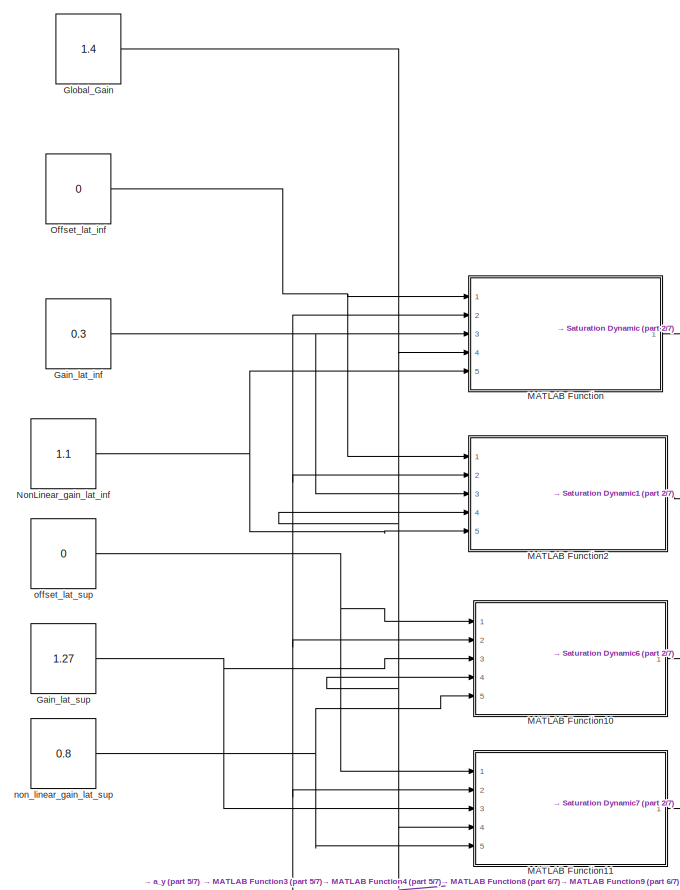
[diagram: root canvas - part 1/7, top center region]
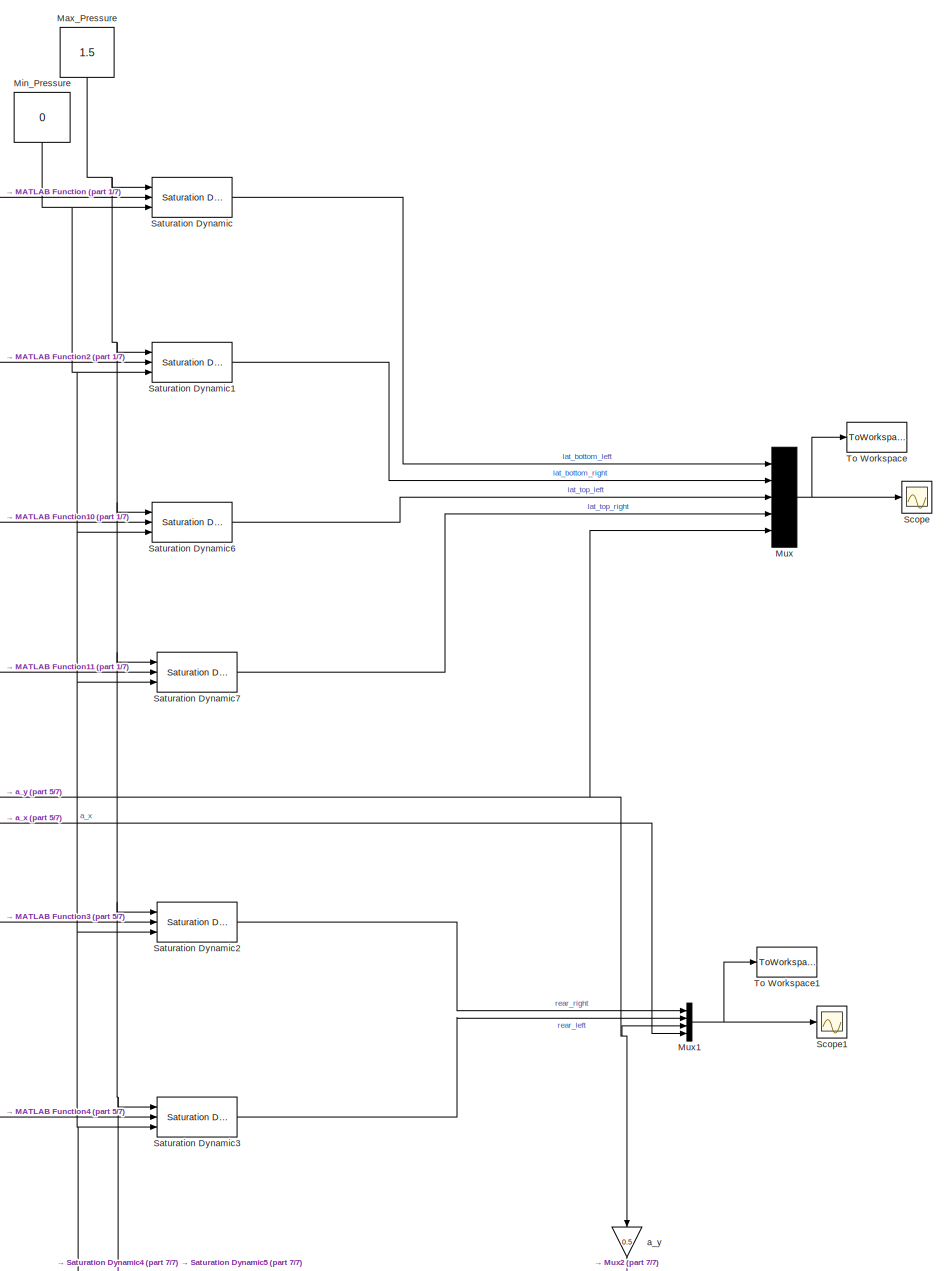
[diagram: root canvas - part 2/7, top right region]
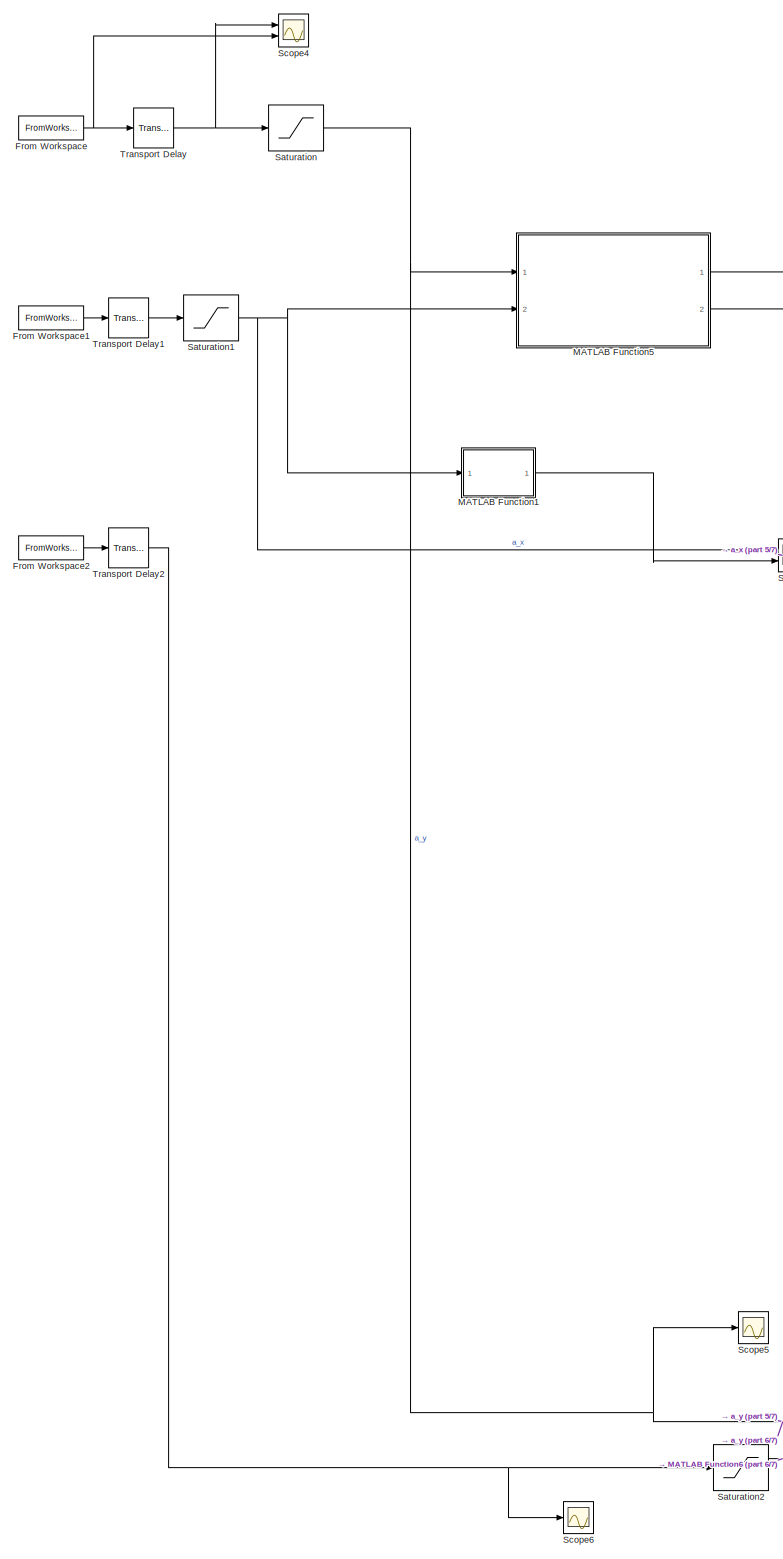
[diagram: root canvas - part 3/7, middle left region]
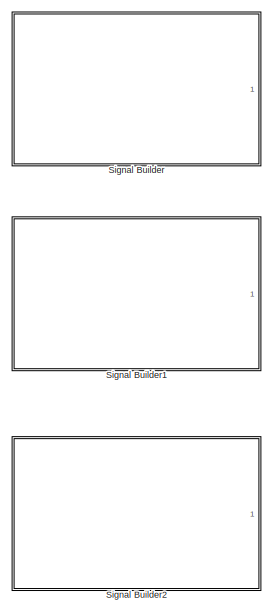
[diagram: root canvas - part 4/7, middle left region]
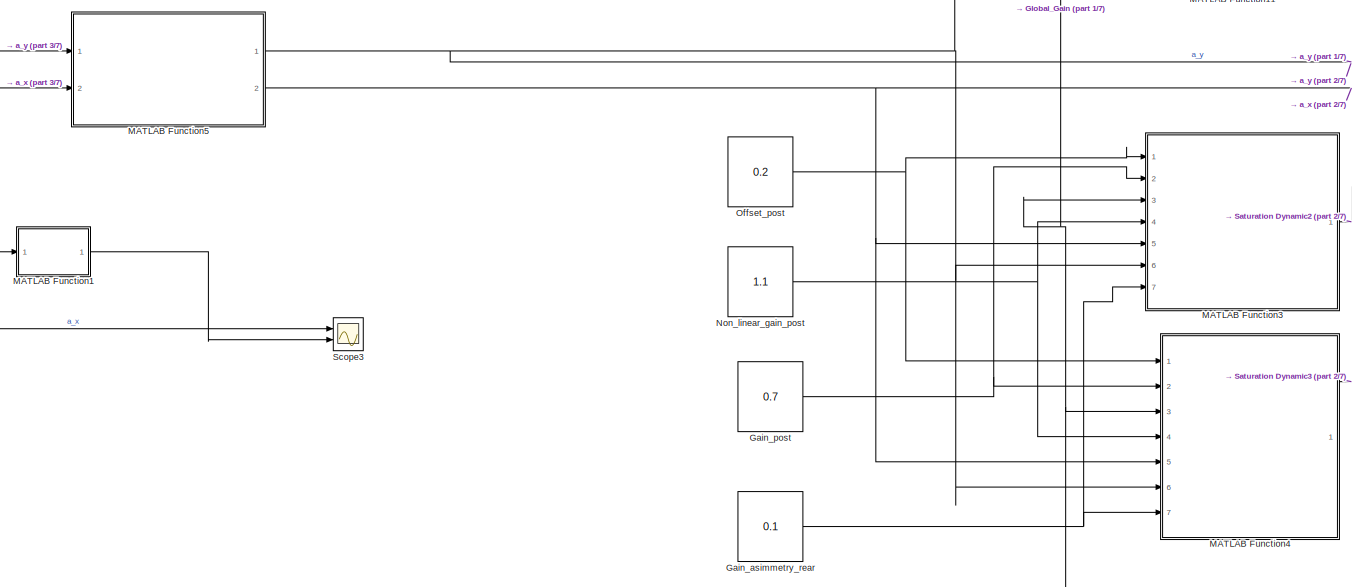
[diagram: root canvas - part 5/7, central region]
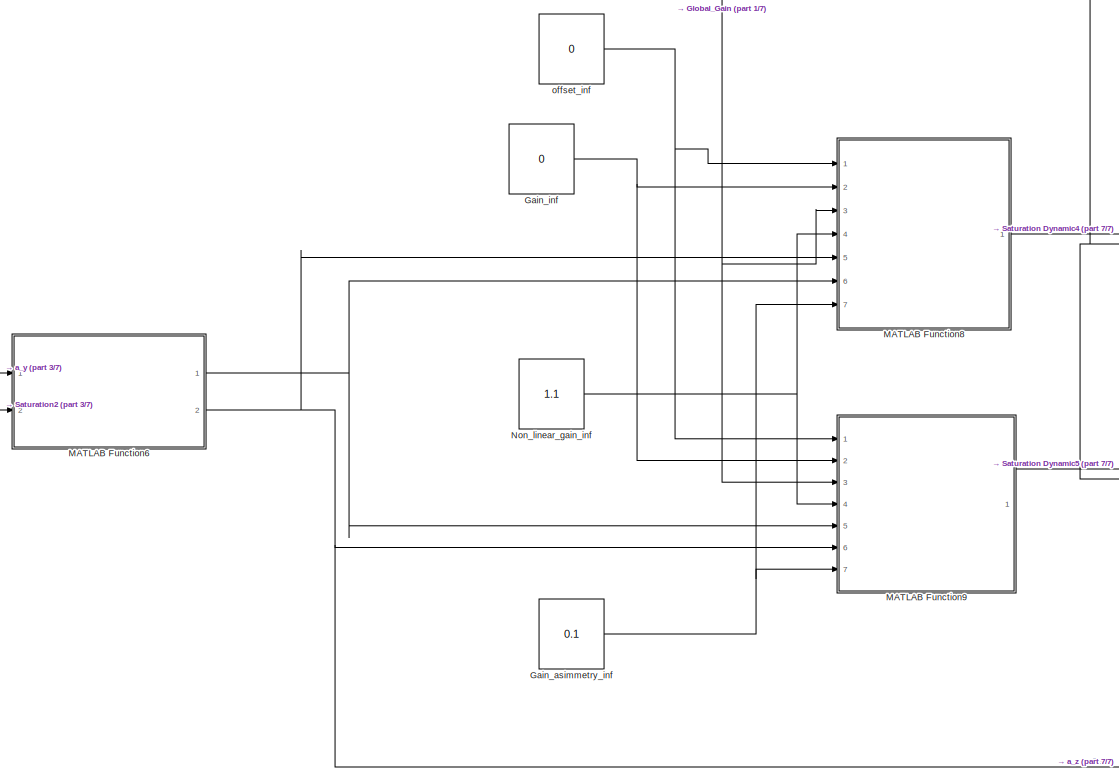
[diagram: root canvas - part 6/7, bottom center region]
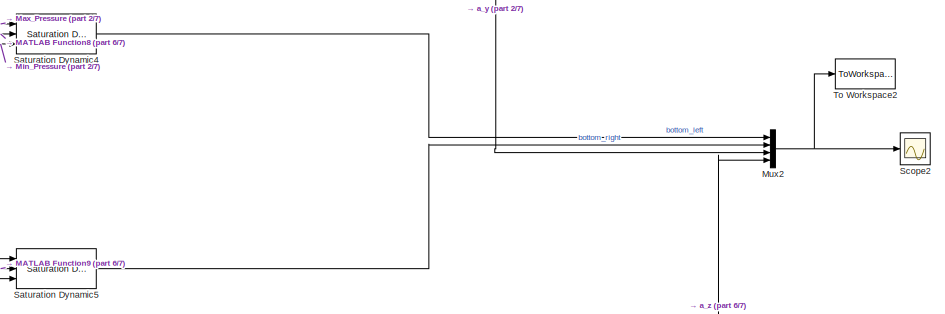
[diagram: root canvas - part 7/7, bottom right region]
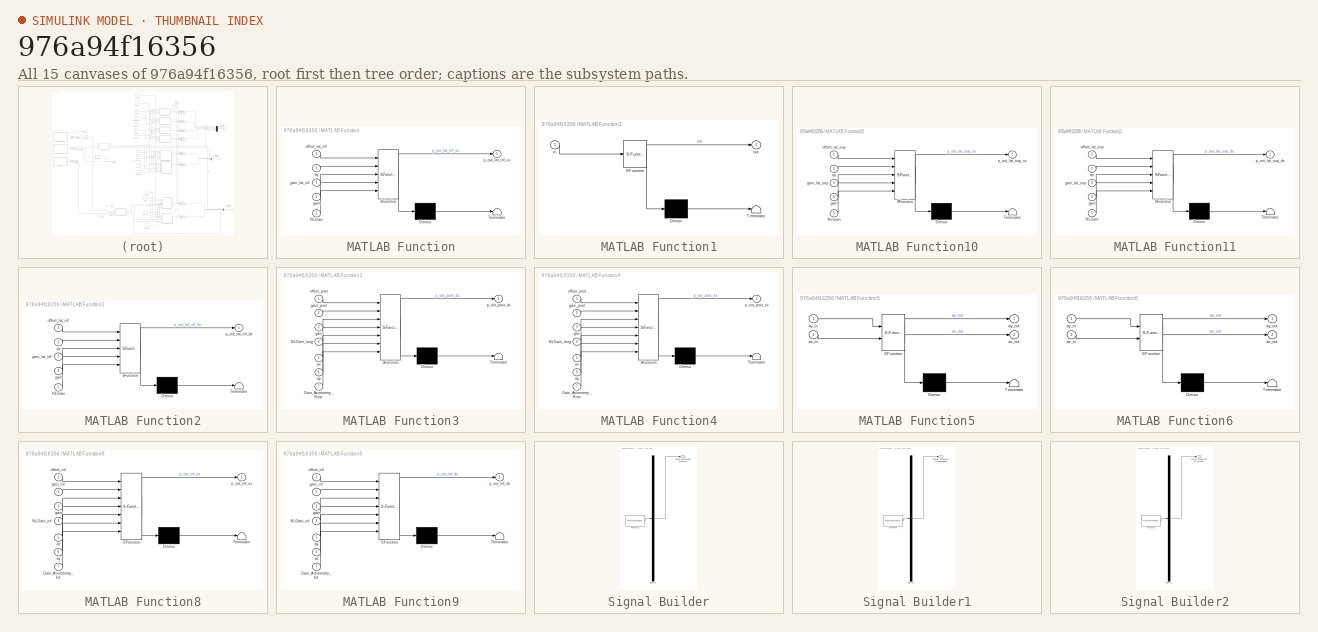
[diagram: thumbnail index - all 15 canvases of the model, root first then tree order]
MODEL slx_976a94f16356
KIND model
CONFIG AbsTol = auto
CONFIG EnableMultiTasking = on
CONFIG FixedStep = 0.001
CONFIG MaxStep = auto
CONFIG MinStep = auto
CONFIG RelTol = 1e-3
CONFIG SampleTimeConstraint = Unconstrained
CONFIG Solver = ode4
CONFIG SolverName = ode4
CONFIG StartTime = 0.0
CONFIG StopTime = 25
BLOCK [FromWorkspace] From Workspace
  SampleTime = 0
  VariableName = lateral_control_signal
  ZeroCross = on
BLOCK [FromWorkspace] From Workspace1
  SampleTime = 0
  VariableName = longitudinal_control_signal
  ZeroCross = on
BLOCK [FromWorkspace] From Workspace2
  SampleTime = 0
  VariableName = vertical_control_signal
  ZeroCross = on
BLOCK [Constant] Gain_asimmetry_inf
  Value = 0.1
BLOCK [Constant] Gain_asimmetry_rear
  Value = 0.1
BLOCK [Constant] Gain_inf
  Value = 0
BLOCK [Constant] Gain_lat_inf
  Value = 0.3
BLOCK [Constant] Gain_lat_sup
  Value = 1.27
BLOCK [Constant] Gain_post
  Value = 0.7
BLOCK [Constant] Global_Gain
  Value = 1.4
BLOCK [SubSystem] MATLAB Function
  ErrorFcn = Stateflow.Translate.translate
  PermitHierarchicalResolution = ExplicitOnly
  Ports = [5, 1]
  RequestExecContextInheritance = off
  SFBlockType = MATLAB Function
  TreatAsAtomicUnit = on
  Variant = off
BLOCK [Demux] MATLAB Function/ Demux 
  Outputs = 1
  Ports = [1, 1]
BLOCK [S-Function] MATLAB Function/ SFunction 
  EnableBusSupport = on
  FunctionName = sf_sfun
  PortCounts = [5 2]
  Ports = [5, 2]
  SFcnIsStateOwnerBlock = off
  SFunctionDeploymentMode = off
  Tag = Stateflow S-Function Active_seat_04_OFFLINE 2
BLOCK [Terminator] MATLAB Function/ Terminator 
BLOCK [Inport] MATLAB Function/NLGain
  IconDisplay = Port number
  Port = 5
BLOCK [Inport] MATLAB Function/ay
  IconDisplay = Port number
  Port = 2
BLOCK [Inport] MATLAB Function/gain
  IconDisplay = Port number
  Port = 4
BLOCK [Inport] MATLAB Function/gain_lat_inf
  IconDisplay = Port number
  Port = 3
BLOCK [Inport] MATLAB Function/offset_lat_inf
  IconDisplay = Port number
BLOCK [Outport] MATLAB Function/p_out_lat_inf_sx
  IconDisplay = Port number
BLOCK [SubSystem] MATLAB Function1
  ErrorFcn = Stateflow.Translate.translate
  PermitHierarchicalResolution = ExplicitOnly
  Ports = [1, 1]
  RequestExecContextInheritance = off
  SFBlockType = MATLAB Function
  TreatAsAtomicUnit = on
  Variant = off
BLOCK [Demux] MATLAB Function1/ Demux 
  Outputs = 1
  Ports = [1, 1]
BLOCK [S-Function] MATLAB Function1/ SFunction 
  EnableBusSupport = on
  FunctionName = sf_sfun
  PortCounts = [1 2]
  Ports = [1, 2]
  SFcnIsStateOwnerBlock = off
  SFunctionDeploymentMode = off
  Tag = Stateflow S-Function Active_seat_04_OFFLINE 1
BLOCK [Terminator] MATLAB Function1/ Terminator 
BLOCK [Inport] MATLAB Function1/in
  IconDisplay = Port number
BLOCK [Outport] MATLAB Function1/out
  IconDisplay = Port number
BLOCK [SubSystem] MATLAB Function10
  ErrorFcn = Stateflow.Translate.translate
  PermitHierarchicalResolution = ExplicitOnly
  Ports = [5, 1]
  RequestExecContextInheritance = off
  SFBlockType = MATLAB Function
  TreatAsAtomicUnit = on
  Variant = off
BLOCK [Demux] MATLAB Function10/ Demux 
  Outputs = 1
  Ports = [1, 1]
BLOCK [S-Function] MATLAB Function10/ SFunction 
  EnableBusSupport = on
  FunctionName = sf_sfun
  PortCounts = [5 2]
  Ports = [5, 2]
  SFcnIsStateOwnerBlock = off
  SFunctionDeploymentMode = off
  Tag = Stateflow S-Function Active_seat_04_OFFLINE 11
BLOCK [Terminator] MATLAB Function10/ Terminator 
BLOCK [Inport] MATLAB Function10/NLGain
  IconDisplay = Port number
  Port = 5
BLOCK [Inport] MATLAB Function10/ay
  IconDisplay = Port number
  Port = 2
BLOCK [Inport] MATLAB Function10/gain
  IconDisplay = Port number
  Port = 4
BLOCK [Inport] MATLAB Function10/gain_lat_sup
  IconDisplay = Port number
  Port = 3
BLOCK [Inport] MATLAB Function10/offset_lat_sup
  IconDisplay = Port number
BLOCK [Outport] MATLAB Function10/p_out_lat_sup_sx
  IconDisplay = Port number
BLOCK [SubSystem] MATLAB Function11
  ErrorFcn = Stateflow.Translate.translate
  PermitHierarchicalResolution = ExplicitOnly
  Ports = [5, 1]
  RequestExecContextInheritance = off
  SFBlockType = MATLAB Function
  TreatAsAtomicUnit = on
  Variant = off
BLOCK [Demux] MATLAB Function11/ Demux 
  Outputs = 1
  Ports = [1, 1]
BLOCK [S-Function] MATLAB Function11/ SFunction 
  EnableBusSupport = on
  FunctionName = sf_sfun
  PortCounts = [5 2]
  Ports = [5, 2]
  SFcnIsStateOwnerBlock = off
  SFunctionDeploymentMode = off
  Tag = Stateflow S-Function Active_seat_04_OFFLINE 12
BLOCK [Terminator] MATLAB Function11/ Terminator 
BLOCK [Inport] MATLAB Function11/NLGain
  IconDisplay = Port number
  Port = 5
BLOCK [Inport] MATLAB Function11/ay
  IconDisplay = Port number
  Port = 2
BLOCK [Inport] MATLAB Function11/gain
  IconDisplay = Port number
  Port = 4
BLOCK [Inport] MATLAB Function11/gain_lat_sup
  IconDisplay = Port number
  Port = 3
BLOCK [Inport] MATLAB Function11/offset_lat_sup
  IconDisplay = Port number
BLOCK [Outport] MATLAB Function11/p_out_lat_sup_dx
  IconDisplay = Port number
BLOCK [SubSystem] MATLAB Function2
  ErrorFcn = Stateflow.Translate.translate
  PermitHierarchicalResolution = ExplicitOnly
  Ports = [5, 1]
  RequestExecContextInheritance = off
  SFBlockType = MATLAB Function
  TreatAsAtomicUnit = on
  Variant = off
BLOCK [Demux] MATLAB Function2/ Demux 
  Outputs = 1
  Ports = [1, 1]
BLOCK [S-Function] MATLAB Function2/ SFunction 
  EnableBusSupport = on
  FunctionName = sf_sfun
  PortCounts = [5 2]
  Ports = [5, 2]
  SFcnIsStateOwnerBlock = off
  SFunctionDeploymentMode = off
  Tag = Stateflow S-Function Active_seat_04_OFFLINE 3
BLOCK [Terminator] MATLAB Function2/ Terminator 
BLOCK [Inport] MATLAB Function2/NLGain
  IconDisplay = Port number
  Port = 5
BLOCK [Inport] MATLAB Function2/ay
  IconDisplay = Port number
  Port = 2
BLOCK [Inport] MATLAB Function2/gain
  IconDisplay = Port number
  Port = 4
BLOCK [Inport] MATLAB Function2/gain_lat_inf
  IconDisplay = Port number
  Port = 3
BLOCK [Inport] MATLAB Function2/offset_lat_inf
  IconDisplay = Port number
BLOCK [Outport] MATLAB Function2/p_out_lat_inf_dx
  IconDisplay = Port number
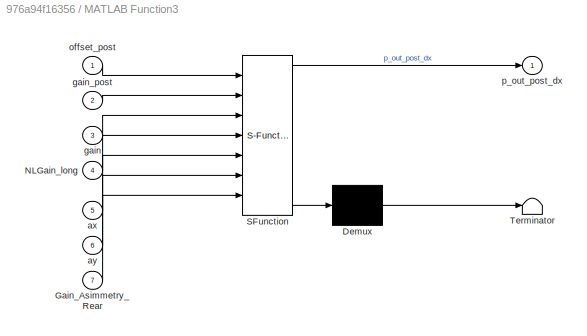
BLOCK [SubSystem] MATLAB Function3
  ErrorFcn = Stateflow.Translate.translate
  PermitHierarchicalResolution = ExplicitOnly
  Ports = [7, 1]
  RequestExecContextInheritance = off
  SFBlockType = MATLAB Function
  TreatAsAtomicUnit = on
  Variant = off
BLOCK [Demux] MATLAB Function3/ Demux 
  Outputs = 1
  Ports = [1, 1]
BLOCK [S-Function] MATLAB Function3/ SFunction 
  EnableBusSupport = on
  FunctionName = sf_sfun
  PortCounts = [7 2]
  Ports = [7, 2]
  SFcnIsStateOwnerBlock = off
  SFunctionDeploymentMode = off
  Tag = Stateflow S-Function Active_seat_04_OFFLINE 4
BLOCK [Terminator] MATLAB Function3/ Terminator 
BLOCK [Inport] MATLAB Function3/Gain_Asimmetry_Rear
  IconDisplay = Port number
  Port = 7
BLOCK [Inport] MATLAB Function3/NLGain_long
  IconDisplay = Port number
  Port = 4
BLOCK [Inport] MATLAB Function3/ax
  IconDisplay = Port number
  Port = 5
BLOCK [Inport] MATLAB Function3/ay
  IconDisplay = Port number
  Port = 6
BLOCK [Inport] MATLAB Function3/gain
  IconDisplay = Port number
  Port = 3
BLOCK [Inport] MATLAB Function3/gain_post
  IconDisplay = Port number
  Port = 2
BLOCK [Inport] MATLAB Function3/offset_post
  IconDisplay = Port number
BLOCK [Outport] MATLAB Function3/p_out_post_dx
  IconDisplay = Port number
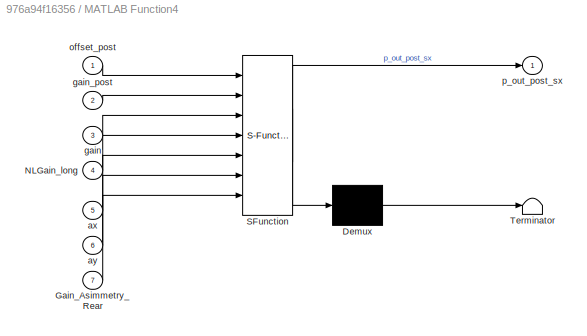
BLOCK [SubSystem] MATLAB Function4
  ErrorFcn = Stateflow.Translate.translate
  PermitHierarchicalResolution = ExplicitOnly
  Ports = [7, 1]
  RequestExecContextInheritance = off
  SFBlockType = MATLAB Function
  TreatAsAtomicUnit = on
  Variant = off
BLOCK [Demux] MATLAB Function4/ Demux 
  Outputs = 1
  Ports = [1, 1]
BLOCK [S-Function] MATLAB Function4/ SFunction 
  EnableBusSupport = on
  FunctionName = sf_sfun
  PortCounts = [7 2]
  Ports = [7, 2]
  SFcnIsStateOwnerBlock = off
  SFunctionDeploymentMode = off
  Tag = Stateflow S-Function Active_seat_04_OFFLINE 5
BLOCK [Terminator] MATLAB Function4/ Terminator 
BLOCK [Inport] MATLAB Function4/Gain_Asimmetry_Rear
  IconDisplay = Port number
  Port = 7
BLOCK [Inport] MATLAB Function4/NLGain_long
  IconDisplay = Port number
  Port = 4
BLOCK [Inport] MATLAB Function4/ax
  IconDisplay = Port number
  Port = 5
BLOCK [Inport] MATLAB Function4/ay
  IconDisplay = Port number
  Port = 6
BLOCK [Inport] MATLAB Function4/gain
  IconDisplay = Port number
  Port = 3
BLOCK [Inport] MATLAB Function4/gain_post
  IconDisplay = Port number
  Port = 2
BLOCK [Inport] MATLAB Function4/offset_post
  IconDisplay = Port number
BLOCK [Outport] MATLAB Function4/p_out_post_sx
  IconDisplay = Port number
BLOCK [SubSystem] MATLAB Function5
  ErrorFcn = Stateflow.Translate.translate
  PermitHierarchicalResolution = ExplicitOnly
  Ports = [2, 2]
  RequestExecContextInheritance = off
  SFBlockType = MATLAB Function
  TreatAsAtomicUnit = on
  Variant = off
BLOCK [Demux] MATLAB Function5/ Demux 
  Outputs = 1
  Ports = [1, 1]
BLOCK [S-Function] MATLAB Function5/ SFunction 
  EnableBusSupport = on
  FunctionName = sf_sfun
  Parameters = filter_pars
  PortCounts = [2 3]
  Ports = [2, 3]
  SFcnIsStateOwnerBlock = off
  SFunctionDeploymentMode = off
  Tag = Stateflow S-Function Active_seat_04_OFFLINE 6
BLOCK [Terminator] MATLAB Function5/ Terminator 
BLOCK [Inport] MATLAB Function5/ax_in
  IconDisplay = Port number
  Port = 2
BLOCK [Outport] MATLAB Function5/ax_out
  IconDisplay = Port number
  Port = 2
BLOCK [Inport] MATLAB Function5/ay_in
  IconDisplay = Port number
BLOCK [Outport] MATLAB Function5/ay_out
  IconDisplay = Port number
BLOCK [SubSystem] MATLAB Function6
  ErrorFcn = Stateflow.Translate.translate
  PermitHierarchicalResolution = ExplicitOnly
  Ports = [2, 2]
  RequestExecContextInheritance = off
  SFBlockType = MATLAB Function
  TreatAsAtomicUnit = on
  Variant = off
BLOCK [Demux] MATLAB Function6/ Demux 
  Outputs = 1
  Ports = [1, 1]
BLOCK [S-Function] MATLAB Function6/ SFunction 
  EnableBusSupport = on
  FunctionName = sf_sfun
  Parameters = filter_pars
  PortCounts = [2 3]
  Ports = [2, 3]
  SFcnIsStateOwnerBlock = off
  SFunctionDeploymentMode = off
  Tag = Stateflow S-Function Active_seat_04_OFFLINE 7
BLOCK [Terminator] MATLAB Function6/ Terminator 
BLOCK [Inport] MATLAB Function6/ay_in
  IconDisplay = Port number
BLOCK [Outport] MATLAB Function6/ay_out
  IconDisplay = Port number
BLOCK [Inport] MATLAB Function6/az_in
  IconDisplay = Port number
  Port = 2
BLOCK [Outport] MATLAB Function6/az_out
  IconDisplay = Port number
  Port = 2
BLOCK [SubSystem] MATLAB Function8
  ErrorFcn = Stateflow.Translate.translate
  PermitHierarchicalResolution = ExplicitOnly
  Ports = [7, 1]
  RequestExecContextInheritance = off
  SFBlockType = MATLAB Function
  TreatAsAtomicUnit = on
  Variant = off
BLOCK [Demux] MATLAB Function8/ Demux 
  Outputs = 1
  Ports = [1, 1]
BLOCK [S-Function] MATLAB Function8/ SFunction 
  EnableBusSupport = on
  FunctionName = sf_sfun
  PortCounts = [7 2]
  Ports = [7, 2]
  SFcnIsStateOwnerBlock = off
  SFunctionDeploymentMode = off
  Tag = Stateflow S-Function Active_seat_04_OFFLINE 9
BLOCK [Terminator] MATLAB Function8/ Terminator 
BLOCK [Inport] MATLAB Function8/Gain_Asimmetry_Inf
  IconDisplay = Port number
  Port = 7
BLOCK [Inport] MATLAB Function8/NLGain_inf
  IconDisplay = Port number
  Port = 4
BLOCK [Inport] MATLAB Function8/ay
  IconDisplay = Port number
  Port = 6
BLOCK [Inport] MATLAB Function8/az
  IconDisplay = Port number
  Port = 5
BLOCK [Inport] MATLAB Function8/gain
  IconDisplay = Port number
  Port = 3
BLOCK [Inport] MATLAB Function8/gain_inf
  IconDisplay = Port number
  Port = 2
BLOCK [Inport] MATLAB Function8/offset_inf
  IconDisplay = Port number
BLOCK [Outport] MATLAB Function8/p_out_inf_sx
  IconDisplay = Port number
BLOCK [SubSystem] MATLAB Function9
  ErrorFcn = Stateflow.Translate.translate
  PermitHierarchicalResolution = ExplicitOnly
  Ports = [7, 1]
  RequestExecContextInheritance = off
  SFBlockType = MATLAB Function
  TreatAsAtomicUnit = on
  Variant = off
BLOCK [Demux] MATLAB Function9/ Demux 
  Outputs = 1
  Ports = [1, 1]
BLOCK [S-Function] MATLAB Function9/ SFunction 
  EnableBusSupport = on
  FunctionName = sf_sfun
  PortCounts = [7 2]
  Ports = [7, 2]
  SFcnIsStateOwnerBlock = off
  SFunctionDeploymentMode = off
  Tag = Stateflow S-Function Active_seat_04_OFFLINE 10
BLOCK [Terminator] MATLAB Function9/ Terminator 
BLOCK [Inport] MATLAB Function9/Gain_Asimmetry_Inf
  IconDisplay = Port number
  Port = 7
BLOCK [Inport] MATLAB Function9/NLGain_inf
  IconDisplay = Port number
  Port = 4
BLOCK [Inport] MATLAB Function9/ay
  IconDisplay = Port number
  Port = 5
BLOCK [Inport] MATLAB Function9/az
  IconDisplay = Port number
  Port = 6
BLOCK [Inport] MATLAB Function9/gain
  IconDisplay = Port number
  Port = 3
BLOCK [Inport] MATLAB Function9/gain_inf
  IconDisplay = Port number
  Port = 2
BLOCK [Inport] MATLAB Function9/offset_inf
  IconDisplay = Port number
BLOCK [Outport] MATLAB Function9/p_out_inf_dx
  IconDisplay = Port number
BLOCK [Constant] Max_Pressure
  Value = 1.5
BLOCK [Constant] Min_Pressure
  Value = 0
BLOCK [Mux] Mux
  DisplayOption = bar
  Inputs = 5
  Ports = [5, 1]
BLOCK [Mux] Mux1
  DisplayOption = bar
  Ports = [4, 1]
BLOCK [Mux] Mux2
  DisplayOption = bar
  Ports = [4, 1]
BLOCK [Constant] NonLinear_gain_lat_inf
  Value = 1.1
BLOCK [Constant] Non_linear_gain_inf
  Value = 1.1
BLOCK [Constant] Non_linear_gain_post
  Value = 1.1
BLOCK [Constant] Offset_lat_inf
  Value = 0
BLOCK [Constant] Offset_post
  Value = 0.2
BLOCK [Saturate] Saturation
  InputPortMap = u0
  LowerLimit = -5
  Ports = [1, 1]
  UpperLimit = 5
BLOCK [Reference] Saturation Dynamic  REF=simulink/Discontinuities/Saturation
Dynamic
  Ports = [3, 1]
  SourceBlock = simulink/Discontinuities/Saturation\nDynamic
  SourceProductBaseCode = SL
  SourceProductName = Simulink
  SourceType = Saturation Dynamic
BLOCK [Reference] Saturation Dynamic1  REF=simulink/Discontinuities/Saturation
Dynamic
  Ports = [3, 1]
  SourceBlock = simulink/Discontinuities/Saturation\nDynamic
  SourceProductBaseCode = SL
  SourceProductName = Simulink
  SourceType = Saturation Dynamic
BLOCK [Reference] Saturation Dynamic2  REF=simulink/Discontinuities/Saturation
Dynamic
  Ports = [3, 1]
  SourceBlock = simulink/Discontinuities/Saturation\nDynamic
  SourceProductBaseCode = SL
  SourceProductName = Simulink
  SourceType = Saturation Dynamic
BLOCK [Reference] Saturation Dynamic3  REF=simulink/Discontinuities/Saturation
Dynamic
  Ports = [3, 1]
  SourceBlock = simulink/Discontinuities/Saturation\nDynamic
  SourceProductBaseCode = SL
  SourceProductName = Simulink
  SourceType = Saturation Dynamic
BLOCK [Reference] Saturation Dynamic4  REF=simulink/Discontinuities/Saturation
Dynamic
  Ports = [3, 1]
  SourceBlock = simulink/Discontinuities/Saturation\nDynamic
  SourceProductBaseCode = SL
  SourceProductName = Simulink
  SourceType = Saturation Dynamic
BLOCK [Reference] Saturation Dynamic5  REF=simulink/Discontinuities/Saturation
Dynamic
  Ports = [3, 1]
  SourceBlock = simulink/Discontinuities/Saturation\nDynamic
  SourceProductBaseCode = SL
  SourceProductName = Simulink
  SourceType = Saturation Dynamic
BLOCK [Reference] Saturation Dynamic6  REF=simulink/Discontinuities/Saturation
Dynamic
  Ports = [3, 1]
  SourceBlock = simulink/Discontinuities/Saturation\nDynamic
  SourceProductBaseCode = SL
  SourceProductName = Simulink
  SourceType = Saturation Dynamic
BLOCK [Reference] Saturation Dynamic7  REF=simulink/Discontinuities/Saturation
Dynamic
  Ports = [3, 1]
  SourceBlock = simulink/Discontinuities/Saturation\nDynamic
  SourceProductBaseCode = SL
  SourceProductName = Simulink
  SourceType = Saturation Dynamic
BLOCK [Saturate] Saturation1
  InputPortMap = u0
  LowerLimit = -5
  Ports = [1, 1]
  UpperLimit = 5
BLOCK [Saturate] Saturation2
  InputPortMap = u0
  LowerLimit = -5
  Ports = [1, 1]
  UpperLimit = 5
BLOCK [Scope] Scope
  NumInputPorts = 1
  Ports = [1]
  ScopeSpecificationString = Simulink.scopes.TimeScopeBlockCfg('CurrentConfiguration', extmgr.ConfigurationSet(extmgr.Configuration('Core','General UI',true,'FigureColor',[1 1 1]),extmgr.Configuration('Core','Source UI',true),extmgr.Configuration('Sources','WiredSimulink',true),extmgr.Configuration('Visuals','Time Domain',true,'SerializedDisplays',{struct('MinYLimReal','-0.72252','MaxYLimReal','5.63584','YLabelReal','','MinYL...<+1661ch>
BLOCK [Scope] Scope1
  NumInputPorts = 1
  Ports = [1]
  ScopeSpecificationString = Simulink.scopes.TimeScopeBlockCfg('CurrentConfiguration', extmgr.ConfigurationSet(extmgr.Configuration('Core','General UI',true,'FigureColor',[1 1 1]),extmgr.Configuration('Core','Source UI',true),extmgr.Configuration('Sources','WiredSimulink',true,'DataLoggingVariableName','ScopeData1'),extmgr.Configuration('Visuals','Time Domain',true,'SerializedDisplays',{struct('MinYLimReal','-0.72861','MaxYLi...<+1770ch>
BLOCK [Scope] Scope2
  NumInputPorts = 1
  Ports = [1]
  ScopeSpecificationString = Simulink.scopes.TimeScopeBlockCfg('CurrentConfiguration', extmgr.ConfigurationSet(extmgr.Configuration('Core','General UI',true,'FigureColor',[1 1 1]),extmgr.Configuration('Core','Source UI',true),extmgr.Configuration('Sources','WiredSimulink',true,'DataLoggingVariableName','ScopeData2'),extmgr.Configuration('Visuals','Time Domain',true,'SerializedDisplays',{struct('MinYLimReal','-0.68062','MaxYLi...<+1735ch>
BLOCK [Scope] Scope3
  NumInputPorts = 2
  Ports = [2]
  ScopeSpecificationString = Simulink.scopes.TimeScopeBlockCfg('CurrentConfiguration', extmgr.ConfigurationSet(extmgr.Configuration('Core','General UI',true),extmgr.Configuration('Core','Source UI',true),extmgr.Configuration('Sources','WiredSimulink',true,'DataLoggingVariableName','ScopeData1'),extmgr.Configuration('Visuals','Time Domain',true,'SerializedDisplays',{struct('MinYLimReal','-0.26396','MaxYLimReal','1.48186','YLab...<+1428ch>
BLOCK [Scope] Scope4
  NumInputPorts = 2
  Ports = [2]
  ScopeSpecificationString = Simulink.scopes.TimeScopeBlockCfg('CurrentConfiguration', extmgr.ConfigurationSet(extmgr.Configuration('Core','General UI',true),extmgr.Configuration('Core','Source UI',true),extmgr.Configuration('Sources','WiredSimulink',true,'DataLoggingVariableName','ScopeData1'),extmgr.Configuration('Visuals','Time Domain',true,'SerializedDisplays',{struct('MinYLimReal','-0.00126','MaxYLimReal','0.00068','YLab...<+1462ch>
BLOCK [Scope] Scope5
  NumInputPorts = 1
  Ports = [1]
  ScopeSpecificationString = Simulink.scopes.TimeScopeBlockCfg('CurrentConfiguration', extmgr.ConfigurationSet(extmgr.Configuration('Core','General UI',true),extmgr.Configuration('Core','Source UI',true),extmgr.Configuration('Sources','WiredSimulink',true,'DataLoggingVariableName','ScopeData1'),extmgr.Configuration('Visuals','Time Domain',true,'SerializedDisplays',{struct('MinYLimReal','-1.00308','MaxYLimReal','0.95968','YLab...<+1362ch>
BLOCK [Scope] Scope6
  NumInputPorts = 1
  Ports = [1]
  ScopeSpecificationString = Simulink.scopes.TimeScopeBlockCfg('CurrentConfiguration', extmgr.ConfigurationSet(extmgr.Configuration('Core','General UI',true),extmgr.Configuration('Core','Source UI',true),extmgr.Configuration('Sources','WiredSimulink',true,'DataLoggingVariableName','ScopeData2'),extmgr.Configuration('Visuals','Time Domain',true,'SerializedDisplays',{struct('MinYLimReal','-0.99607','MaxYLimReal','0.609','YLabel...<+1371ch>
BLOCK [SubSystem] Signal Builder
  ClipboardFcn = sigbuilder_block('clipboard');
  CloseFcn = sigbuilder_block('close');
  ContinueFcn = sigbuilder_block('continue');
  CopyFcn = sigbuilder_block('copy');
  DeleteFcn = sigbuilder_block('delete');
  LoadFcn = sigbuilder_block('load');
  MaskHideContents = on
  ModelCloseFcn = sigbuilder_block('modelClose');
  NameChangeFcn = sigbuilder_block('namechange');
  OpenFcn = sigbuilder_block('open',[333 123 550.8 400.2 ]);
  PauseFcn = sigbuilder_block('pause');
  Ports = [0, 1]
  PreSaveFcn = sigbuilder_block('preSave');
  RequestExecContextInheritance = off
  StartFcn = sigbuilder_block('start');
  StopFcn = sigbuilder_block('stop');
  Tag = STV Subsys
  Variant = off
BLOCK [Demux] Signal Builder/Demux
  Outputs = 1
  Ports = [1, 1]
  Tag = STV Demux
BLOCK [FromWorkspace] Signal Builder/FromWs
  SampleTime = 0
  Tag = STV FromWs
  VariableName = tuvar
  ZeroCross = on
BLOCK [Outport] Signal Builder/chassis_accelerations.lateral
  IconDisplay = Port number
BLOCK [SubSystem] Signal Builder1
  ClipboardFcn = sigbuilder_block('clipboard');
  CloseFcn = sigbuilder_block('close');
  ContinueFcn = sigbuilder_block('continue');
  CopyFcn = sigbuilder_block('copy');
  DeleteFcn = sigbuilder_block('delete');
  LoadFcn = sigbuilder_block('load');
  MaskHideContents = on
  ModelCloseFcn = sigbuilder_block('modelClose');
  NameChangeFcn = sigbuilder_block('namechange');
  OpenFcn = sigbuilder_block('open',[333 123 550.8 400.2 ]);
  PauseFcn = sigbuilder_block('pause');
  Ports = [0, 1]
  PreSaveFcn = sigbuilder_block('preSave');
  RequestExecContextInheritance = off
  StartFcn = sigbuilder_block('start');
  StopFcn = sigbuilder_block('stop');
  Tag = STV Subsys
  Variant = off
BLOCK [Demux] Signal Builder1/Demux
  Outputs = 1
  Ports = [1, 1]
  Tag = STV Demux
BLOCK [FromWorkspace] Signal Builder1/FromWs
  SampleTime = 0
  Tag = STV FromWs
  VariableName = tuvar
  ZeroCross = on
BLOCK [Outport] Signal Builder1/chassis_accelerations.longitudinal
  IconDisplay = Port number
BLOCK [SubSystem] Signal Builder2
  ClipboardFcn = sigbuilder_block('clipboard');
  CloseFcn = sigbuilder_block('close');
  ContinueFcn = sigbuilder_block('continue');
  CopyFcn = sigbuilder_block('copy');
  DeleteFcn = sigbuilder_block('delete');
  LoadFcn = sigbuilder_block('load');
  MaskHideContents = on
  ModelCloseFcn = sigbuilder_block('modelClose');
  NameChangeFcn = sigbuilder_block('namechange');
  OpenFcn = sigbuilder_block('open',[333 123 550.8 400.2 ]);
  PauseFcn = sigbuilder_block('pause');
  Ports = [0, 1]
  PreSaveFcn = sigbuilder_block('preSave');
  RequestExecContextInheritance = off
  StartFcn = sigbuilder_block('start');
  StopFcn = sigbuilder_block('stop');
  Tag = STV Subsys
  Variant = off
BLOCK [Demux] Signal Builder2/Demux
  Outputs = 1
  Ports = [1, 1]
  Tag = STV Demux
BLOCK [FromWorkspace] Signal Builder2/FromWs
  SampleTime = 0
  Tag = STV FromWs
  VariableName = tuvar
  ZeroCross = on
BLOCK [Outport] Signal Builder2/chassis_accelerations.vertical
  IconDisplay = Port number
BLOCK [ToWorkspace] To Workspace
  FixptAsFi = on
  MaxDataPoints = inf
  Ports = [1]
  SampleTime = -1
  Save2DSignal = 3-D array (concatenate along third dimension)
  SaveFormat = Structure With Time
  VariableName = lateral_out
BLOCK [ToWorkspace] To Workspace1
  FixptAsFi = on
  MaxDataPoints = inf
  Ports = [1]
  SampleTime = -1
  Save2DSignal = 3-D array (concatenate along third dimension)
  SaveFormat = Structure With Time
  VariableName = rear_out
BLOCK [ToWorkspace] To Workspace2
  FixptAsFi = on
  MaxDataPoints = inf
  Ports = [1]
  SampleTime = -1
  Save2DSignal = 3-D array (concatenate along third dimension)
  SaveFormat = Structure With Time
  VariableName = bottom_out
BLOCK [TransportDelay] Transport Delay
  DelayTime = 0.1
  Ports = [1, 1]
BLOCK [TransportDelay] Transport Delay1
  DelayTime = 0.1
  Ports = [1, 1]
BLOCK [TransportDelay] Transport Delay2
  DelayTime = 0.1
  Ports = [1, 1]
BLOCK [Gain] a_y
  Gain = 0.5
  OutDataTypeStr = Inherit: Inherit via internal rule
  ParamDataTypeStr = Inherit: Inherit via internal rule
  SaturateOnIntegerOverflow = off
BLOCK [Constant] non_linear_gain_lat_sup
  Value = 0.8
BLOCK [Constant] offset_inf
  Value = 0
BLOCK [Constant] offset_lat_sup
  Value = 0
LINE From Workspace1:1 -> Transport Delay1:1
LINE From Workspace2:1 -> Transport Delay2:1
NET From Workspace:1 -> Scope4:2, Transport Delay:1
NET Gain_asimmetry_inf:1 -> MATLAB Function8:7, MATLAB Function9:7
NET Gain_asimmetry_rear:1 -> MATLAB Function3:7, MATLAB Function4:7
NET Gain_inf:1 -> MATLAB Function8:2, MATLAB Function9:2
NET Gain_lat_inf:1 -> MATLAB Function2:3, MATLAB Function:3
NET Gain_lat_sup:1 -> MATLAB Function10:3, MATLAB Function11:3
NET Gain_post:1 -> MATLAB Function3:2, MATLAB Function4:2
NET Global_Gain:1 -> MATLAB Function10:4, MATLAB Function11:4, MATLAB Function2:4, MATLAB Function3:3, MATLAB Function4:3, MATLAB Function8:3, MATLAB Function9:3, MATLAB Function:4
LINE MATLAB Function10:1 -> Saturation Dynamic6:2
LINE MATLAB Function11:1 -> Saturation Dynamic7:2
LINE MATLAB Function1:1 -> Scope3:2
LINE MATLAB Function2:1 -> Saturation Dynamic1:2
LINE MATLAB Function3:1 -> Saturation Dynamic2:2
LINE MATLAB Function4:1 -> Saturation Dynamic3:2
NET MATLAB Function5:1 -> MATLAB Function10:2, MATLAB Function11:2, MATLAB Function2:2, MATLAB Function3:6, MATLAB Function4:6, MATLAB Function:2, Mux1:3, Mux:5, a_y:1
NET MATLAB Function5:2 -> MATLAB Function3:5, MATLAB Function4:5, Mux1:4
NET MATLAB Function6:1 -> MATLAB Function8:6, MATLAB Function9:5
NET MATLAB Function6:2 -> MATLAB Function8:5, MATLAB Function9:6, Mux2:4
LINE MATLAB Function8:1 -> Saturation Dynamic4:2
LINE MATLAB Function9:1 -> Saturation Dynamic5:2
LINE MATLAB Function:1 -> Saturation Dynamic:2
NET Max_Pressure:1 -> Saturation Dynamic1:1, Saturation Dynamic2:1, Saturation Dynamic3:1, Saturation Dynamic4:1, Saturation Dynamic5:1, Saturation Dynamic6:1, Saturation Dynamic7:1, Saturation Dynamic:1
NET Min_Pressure:1 -> Saturation Dynamic1:3, Saturation Dynamic2:3, Saturation Dynamic3:3, Saturation Dynamic4:3, Saturation Dynamic5:3, Saturation Dynamic6:3, Saturation Dynamic7:3, Saturation Dynamic:3
NET Mux1:1 -> Scope1:1, To Workspace1:1
NET Mux2:1 -> Scope2:1, To Workspace2:1
NET Mux:1 -> Scope:1, To Workspace:1
NET NonLinear_gain_lat_inf:1 -> MATLAB Function2:5, MATLAB Function:5
NET Non_linear_gain_inf:1 -> MATLAB Function8:4, MATLAB Function9:4
NET Non_linear_gain_post:1 -> MATLAB Function3:4, MATLAB Function4:4
NET Offset_lat_inf:1 -> MATLAB Function2:1, MATLAB Function:1
NET Offset_post:1 -> MATLAB Function3:1, MATLAB Function4:1
LINE Saturation Dynamic1:1 -> Mux:2
LINE Saturation Dynamic2:1 -> Mux1:1
LINE Saturation Dynamic3:1 -> Mux1:2
LINE Saturation Dynamic4:1 -> Mux2:1
LINE Saturation Dynamic5:1 -> Mux2:2
LINE Saturation Dynamic6:1 -> Mux:3
LINE Saturation Dynamic7:1 -> Mux:4
LINE Saturation Dynamic:1 -> Mux:1
NET Saturation1:1 -> MATLAB Function1:1, MATLAB Function5:2, Scope3:1
LINE Saturation2:1 -> MATLAB Function6:2
NET Saturation:1 -> MATLAB Function5:1, MATLAB Function6:1, Scope5:1
LINE Transport Delay1:1 -> Saturation1:1
NET Transport Delay2:1 -> Saturation2:1, Scope6:1
NET Transport Delay:1 -> Saturation:1, Scope4:1
LINE a_y:1 -> Mux2:3
NET non_linear_gain_lat_sup:1 -> MATLAB Function10:5, MATLAB Function11:5
NET offset_inf:1 -> MATLAB Function8:1, MATLAB Function9:1
NET offset_lat_sup:1 -> MATLAB Function10:1, MATLAB Function11:1
note: NET lines group one-source signal fan-out (src -> all destinations, sorted); 1:1 wires keep LINE
CHART MATLAB Function1 states=1 transitions=1
  STATE_LABEL 'eML_blk_kernel()'
  STATE_LABEL 'SCRIPT:\nfunction out = fcn(in)\n%#codegen\n\nfc = 300;\nfs = 1000;\n\n[b,a] = butter(6,fc/(fs/2));\n%freqz(b,a);\n\nout = filter (b,a, in);'
CHART MATLAB Function states=1 transitions=1
  STATE_LABEL 'eML_blk_kernel()'
  STATE_LABEL 'SCRIPT:\nfunction p_out_lat_inf_sx = lat_inf_sx(offset_lat_inf, ay, gain_lat_inf, gain, NLGain)\n%#codegen\n\n\np_out_lat_inf_sx = offset_lat_inf + gain*sign(ay)*abs(ay)^NLGain*gain_lat_inf;\n'
CHART MATLAB Function2 states=1 transitions=1
  STATE_LABEL 'eML_blk_kernel()'
  STATE_LABEL 'SCRIPT:\nfunction p_out_lat_inf_dx = lat_inf_dx(offset_lat_inf, ay, gain_lat_inf, gain, NLGain)\n%#codegen\n\n\np_out_lat_inf_dx = offset_lat_inf - gain*sign(ay)*abs(ay)^NLGain*gain_lat_inf;\n'
CHART MATLAB Function3 states=1 transitions=1
  STATE_LABEL 'eML_blk_kernel()'
  STATE_LABEL 'SCRIPT:\nfunction p_out_post_dx = post_dx(offset_post, gain_post, gain, NLGain_long, ax, ay, Gain_Asimmetry_Rear)\n%#codegen\n\n\nb = offset_post + sign(ax)*abs(ax)^NLGain_long*gain*gain_post;\n\np_out_post_dx = b-b*Gain_Asimmetry_Rear*2/pi*atan(ay/abs(ax));'
CHART MATLAB Function4 states=1 transitions=1
  STATE_LABEL 'eML_blk_kernel()'
  STATE_LABEL 'SCRIPT:\nfunction p_out_post_sx = post_sx(offset_post, gain_post, gain, NLGain_long, ax, ay, Gain_Asimmetry_Rear)\n%#codegen\n\n\nb = offset_post + sign(ax)*abs(ax)^NLGain_long*gain*gain_post;\n\np_out_post_sx = b+b*Gain_Asimmetry_Rear*2/pi*atan(ay/abs(ax));'
CHART MATLAB Function5 states=1 transitions=1
  STATE_LABEL 'eML_blk_kernel()'
  STATE_LABEL 'SCRIPT:\n%#codegen\nfunction [ay_out, ax_out] = acceleration_filter(ay_in, ax_in, filter_pars)\n% [ax_out, ay_out] = acceleration_filter(ax_in, ay_in, pars)\n% Inputs:\n% - ax_in : longitudinal acceleration\n% - ay_in : lateral acceleration\n% - filter_pars.fcx : longitudinal cutt-off frequency\n% - filter_pars.fcy : lateral cutt-off frequency\n% - filter_pars.Ts  : sampling time\n% Outputs:\n% - ax_out : fi...<+1093ch>'
CHART MATLAB Function6 states=1 transitions=1
  STATE_LABEL 'eML_blk_kernel()'
  STATE_LABEL 'SCRIPT:\n%#codegen\nfunction [ay_out, az_out] = acceleration_filter(ay_in, az_in, filter_pars)\n% [ax_out, ay_out] = acceleration_filter(ax_in, ay_in, pars)\n% Inputs:\n% - ax_in : vertical acceleration\n% - ay_in : lateral acceleration\n% - filter_pars.fcz : vertical cutt-off frequency\n% - filter_pars.fcy : lateral cutt-off frequency\n% - filter_pars.Ts  : sampling time\n% Outputs:\n% - az_out : filtered v...<+1077ch>'
CHART MATLAB Function8 states=1 transitions=1
  STATE_LABEL 'eML_blk_kernel()'
  STATE_LABEL 'SCRIPT:\nfunction p_out_inf_sx = inf_sx(offset_inf, gain_inf, gain, NLGain_inf, az, ay, Gain_Asimmetry_Inf)\n%#codegen\n\n\nb = offset_inf + sign(az)*abs(az)^NLGain_inf*gain*gain_inf;\n\np_out_inf_sx = b + b*Gain_Asimmetry_Inf*2/pi*atan(ay/abs(az));'
CHART MATLAB Function9 states=1 transitions=1
  STATE_LABEL 'eML_blk_kernel()'
  STATE_LABEL 'SCRIPT:\nfunction p_out_inf_dx = inf_dx(offset_inf, gain_inf, gain, NLGain_inf, ay, az, Gain_Asimmetry_Inf)\n%#codegen\n\n\nb = offset_inf + sign(az)*abs(az)^NLGain_inf*gain*gain_inf;\n\np_out_inf_dx = b - b*Gain_Asimmetry_Inf*2/pi*atan(ay/abs(az));'
CHART MATLAB Function10 states=1 transitions=1
  STATE_LABEL 'eML_blk_kernel()'
  STATE_LABEL 'SCRIPT:\nfunction p_out_lat_sup_sx = lat_sup_sx(offset_lat_sup, ay, gain_lat_sup, gain, NLGain)\n%#codegen\n\n\np_out_lat_sup_sx = offset_lat_sup + gain*sign(ay)*abs(ay)^NLGain*gain_lat_sup;\n'
CHART MATLAB Function11 states=1 transitions=1
  STATE_LABEL 'eML_blk_kernel()'
  STATE_LABEL 'SCRIPT:\nfunction p_out_lat_sup_dx = lat_sup_dx(offset_lat_sup, ay, gain_lat_sup, gain, NLGain)\n%#codegen\n\n\np_out_lat_sup_dx = offset_lat_sup - gain*sign(ay)*abs(ay)^NLGain*gain_lat_sup;\n'
